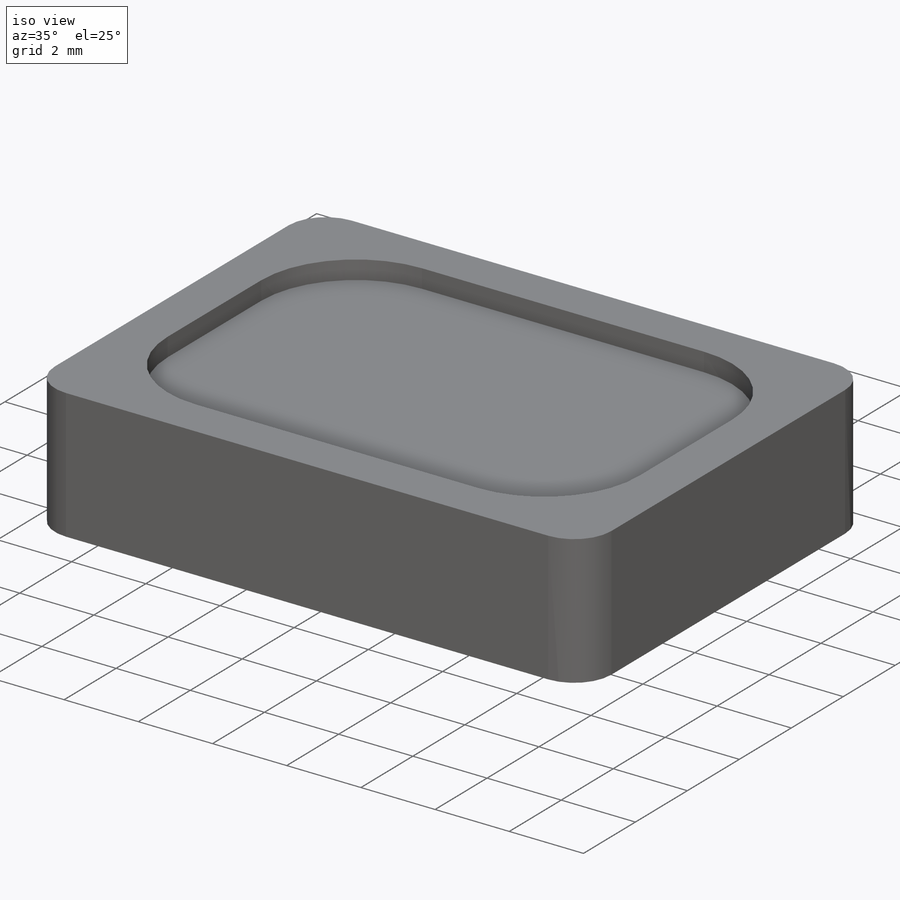
[diagram: iso view]
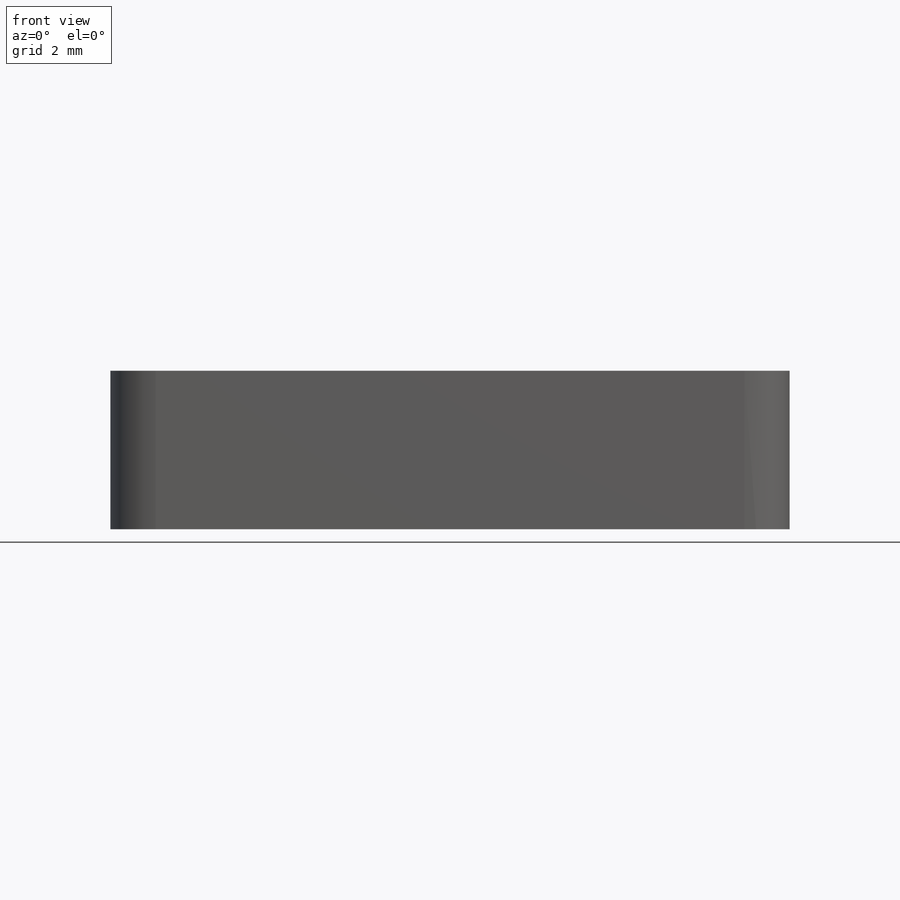
[diagram: front view]
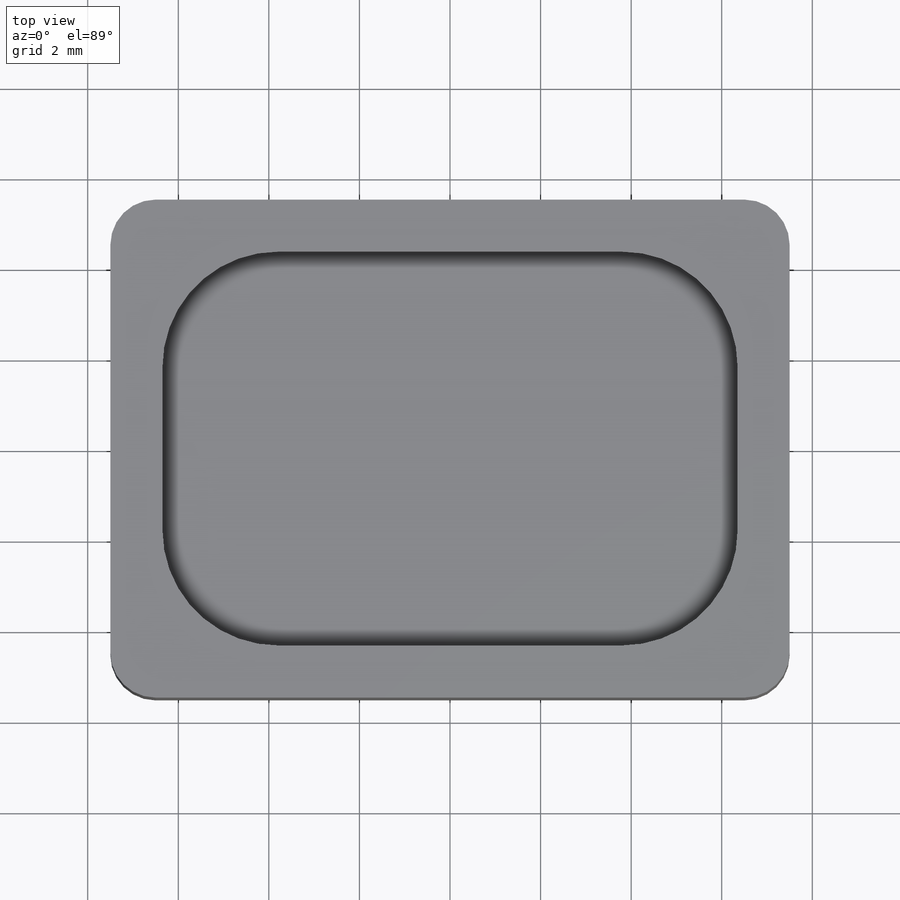
[diagram: top view]
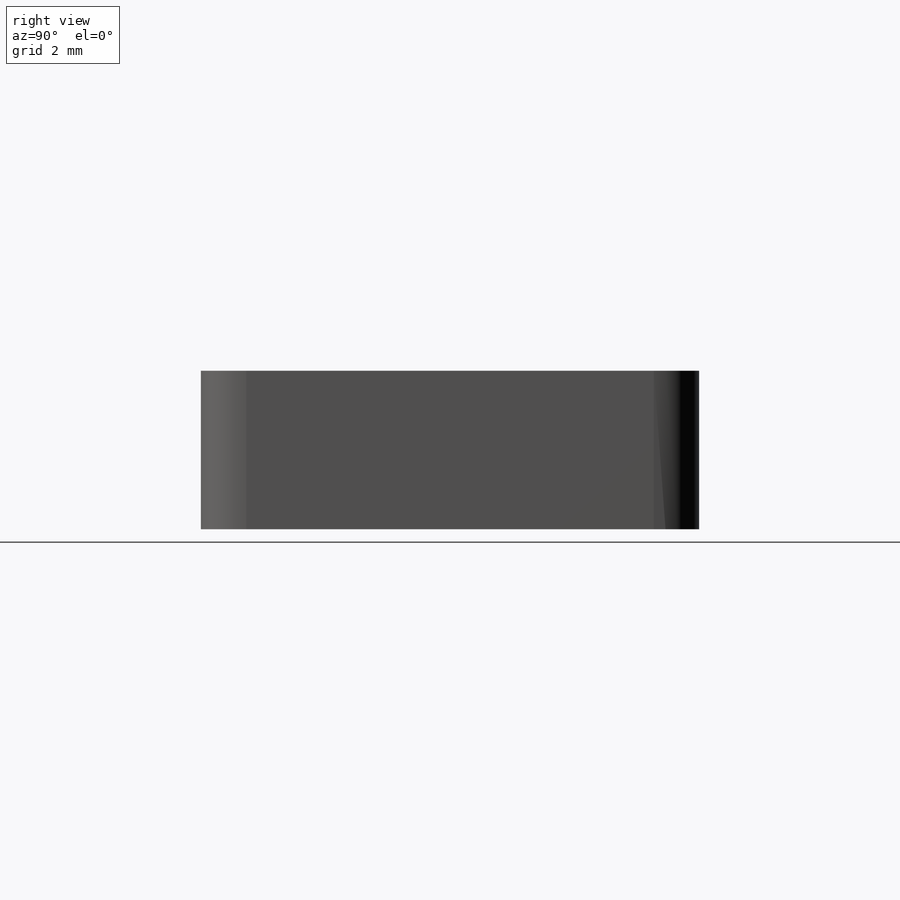
[diagram: right view]
SOLIDWORKS PART (.sldprt)
format: sldprt  version: not decoded by parser v0  size: 136,704 bytes
history: native  units: mm
features: sketch x2, fillet x2, material x1, extrude x1, cut_extrude x1 (+11 scaffold rows collapsed)
feature tree (18):
  scaffold x11  (default folders/planes/origin — collapsed)
  material  "Material <not specified>"
  sketch  "Sketch1"  dims[D1=11.0mm D2=15.0mm]
  extrude  "Boss-Extrude1"  Depth=3.5mm
  fillet  "Fillet1"  Radius=1mm
  sketch  "Sketch2"  dims[D1=12.7mm D2=8.7mm]
  cut_extrude  "Cut-Extrude1"  Depth=0.5mm
  fillet  "Fillet2"  Radius=2.55mm
decode coverage: 6 of 6 modeling features carry decoded parameters
note: suppression state not decoded; provenance and decode notes live in map.json
